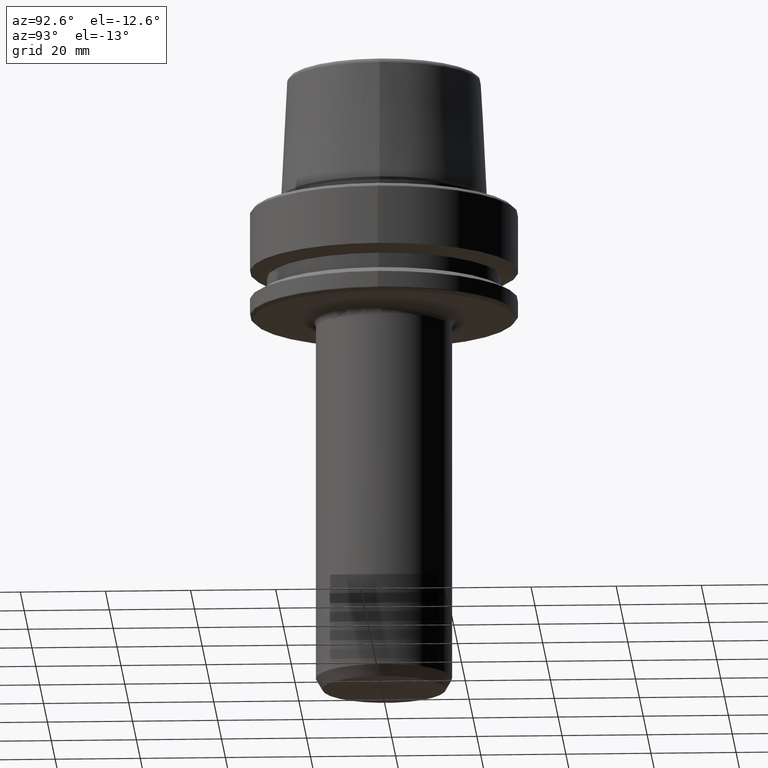
[diagram: clean part render]
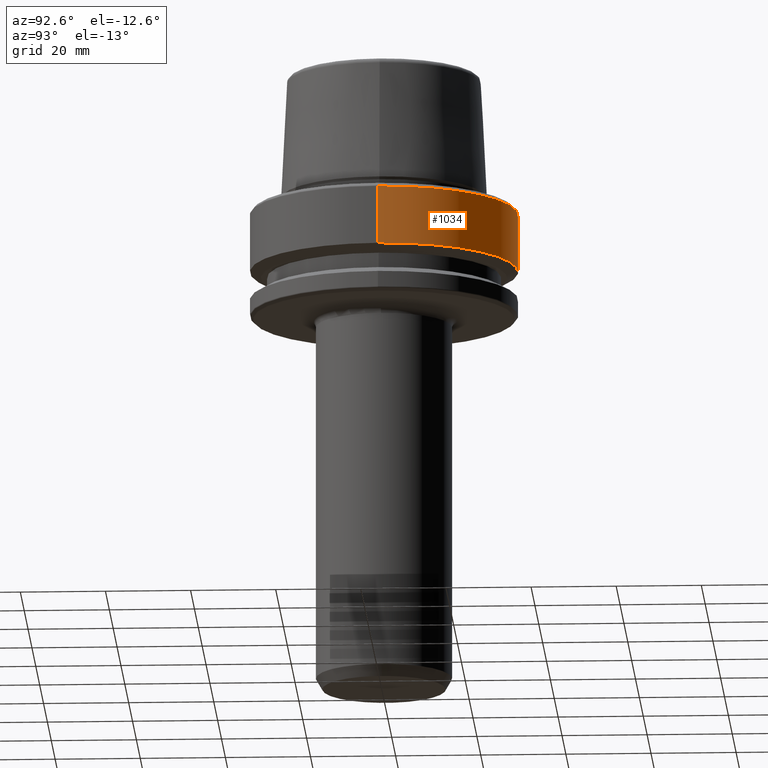
[diagram: same view with one face highlighted and labeled with its STEP entity id]
A machine part, auxiliary view. The second image highlights one B-rep face of the part: STEP entity #1034.
In plain terms, the highlighted cylindrical surface (partial cylindrical patch) has radius 31.5 mm, axis along (-0, -0, 1).
Its self-contained STEP definition (entity closure, byte-faithful):
#32 = DIRECTION ( 'NONE',  ( 1.000000000000000000, 0.0000000000000000000, 0.0000000000000000000 ) ) ;
#48 = VECTOR ( 'NONE', #1000, 1000.000000000000000 ) ;
#69 = VERTEX_POINT ( 'NONE', #901 ) ;
#124 = CARTESIAN_POINT ( 'NONE',  ( 0.0000000000000000000, 0.0000000000000000000, 78.96908074195309300 ) ) ;
#146 = CARTESIAN_POINT ( 'NONE',  ( -31.50000000000000000, 3.857637417314162700E-015, -14.62250092524070100 ) ) ;
#164 = VERTEX_POINT ( 'NONE', #395 ) ;
#174 = CARTESIAN_POINT ( 'NONE',  ( 31.50000000000000000, 0.0000000000000000000, 78.96908074195309300 ) ) ;
#290 = AXIS2_PLACEMENT_3D ( 'NONE', #124, #613, #1028 ) ;
#293 = CYLINDRICAL_SURFACE ( 'NONE', #290, 31.50000000000000000 ) ;
#296 = CIRCLE ( 'NONE', #883, 31.50000000000000000 ) ;
#390 = VERTEX_POINT ( 'NONE', #146 ) ;
#395 = CARTESIAN_POINT ( 'NONE',  ( -31.50000000000000700, 3.857637417314163500E-015, -0.9656854249492363700 ) ) ;
#498 = AXIS2_PLACEMENT_3D ( 'NONE', #659, #1251, #561 ) ;
#503 = LINE ( 'NONE', #174, #48 ) ;
#505 = ORIENTED_EDGE ( 'NONE', *, *, #706, .T. ) ;
#542 = DIRECTION ( 'NONE',  ( -0.0000000000000000000, -0.0000000000000000000, 1.000000000000000000 ) ) ;
#561 = DIRECTION ( 'NONE',  ( 1.000000000000000000, 0.0000000000000000000, 0.0000000000000000000 ) ) ;
#613 = DIRECTION ( 'NONE',  ( -0.0000000000000000000, -0.0000000000000000000, 1.000000000000000000 ) ) ;
#644 = EDGE_LOOP ( 'NONE', ( #977, #505, #757, #1050 ) ) ;
#659 = CARTESIAN_POINT ( 'NONE',  ( 0.0000000000000000000, 0.0000000000000000000, -0.9656854249492363700 ) ) ;
#681 = VECTOR ( 'NONE', #695, 1000.000000000000000 ) ;
#692 = CARTESIAN_POINT ( 'NONE',  ( 31.50000000000000000, 0.0000000000000000000, -14.62250092524070100 ) ) ;
#695 = DIRECTION ( 'NONE',  ( -0.0000000000000000000, -0.0000000000000000000, 1.000000000000000000 ) ) ;
#702 = EDGE_CURVE ( 'NONE', #1152, #390, #296, .T. ) ;
#706 = EDGE_CURVE ( 'NONE', #390, #164, #1080, .T. ) ;
#712 = EDGE_CURVE ( 'NONE', #1152, #69, #503, .T. ) ;
#757 = ORIENTED_EDGE ( 'NONE', *, *, #766, .F. ) ;
#766 = EDGE_CURVE ( 'NONE', #69, #164, #1180, .T. ) ;
#883 = AXIS2_PLACEMENT_3D ( 'NONE', #1169, #542, #32 ) ;
#901 = CARTESIAN_POINT ( 'NONE',  ( 31.50000000000000700, 0.0000000000000000000, -0.9656854249492363700 ) ) ;
#924 = CARTESIAN_POINT ( 'NONE',  ( -31.50000000000000000, 3.857637417314162700E-015, 78.96908074195309300 ) ) ;
#977 = ORIENTED_EDGE ( 'NONE', *, *, #702, .T. ) ;
#1000 = DIRECTION ( 'NONE',  ( -0.0000000000000000000, -0.0000000000000000000, 1.000000000000000000 ) ) ;
#1028 = DIRECTION ( 'NONE',  ( 1.000000000000000000, 0.0000000000000000000, 0.0000000000000000000 ) ) ;
#1034 = ADVANCED_FACE ( 'NONE', ( #1091 ), #293, .T. ) ;
#1050 = ORIENTED_EDGE ( 'NONE', *, *, #712, .F. ) ;
#1080 = LINE ( 'NONE', #924, #681 ) ;
#1091 = FACE_OUTER_BOUND ( 'NONE', #644, .T. ) ;
#1152 = VERTEX_POINT ( 'NONE', #692 ) ;
#1169 = CARTESIAN_POINT ( 'NONE',  ( 0.0000000000000000000, 0.0000000000000000000, -14.62250092524070100 ) ) ;
#1180 = CIRCLE ( 'NONE', #498, 31.50000000000000700 ) ;
#1251 = DIRECTION ( 'NONE',  ( -0.0000000000000000000, -0.0000000000000000000, 1.000000000000000000 ) ) ;